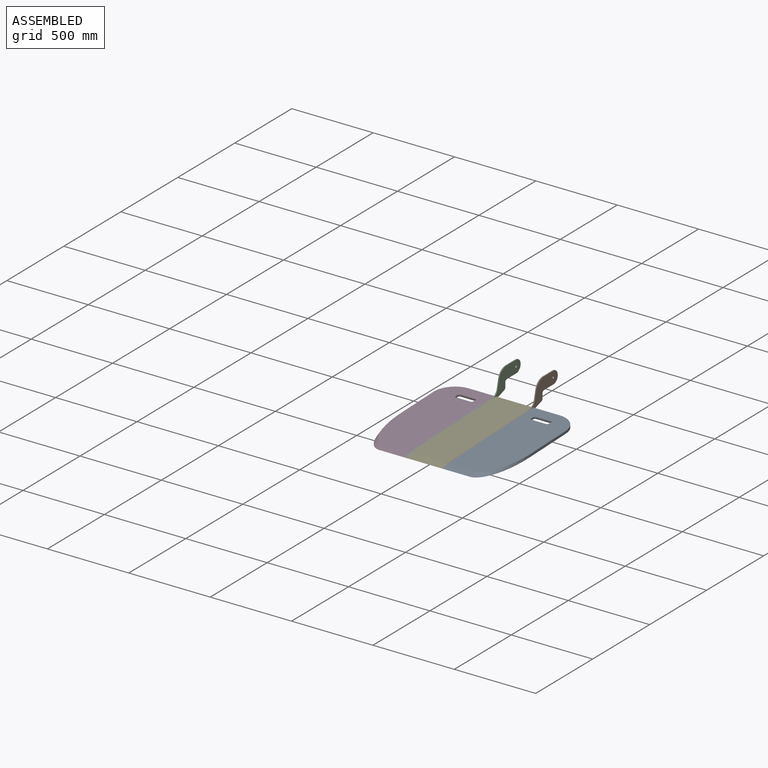
[diagram: assembled view]
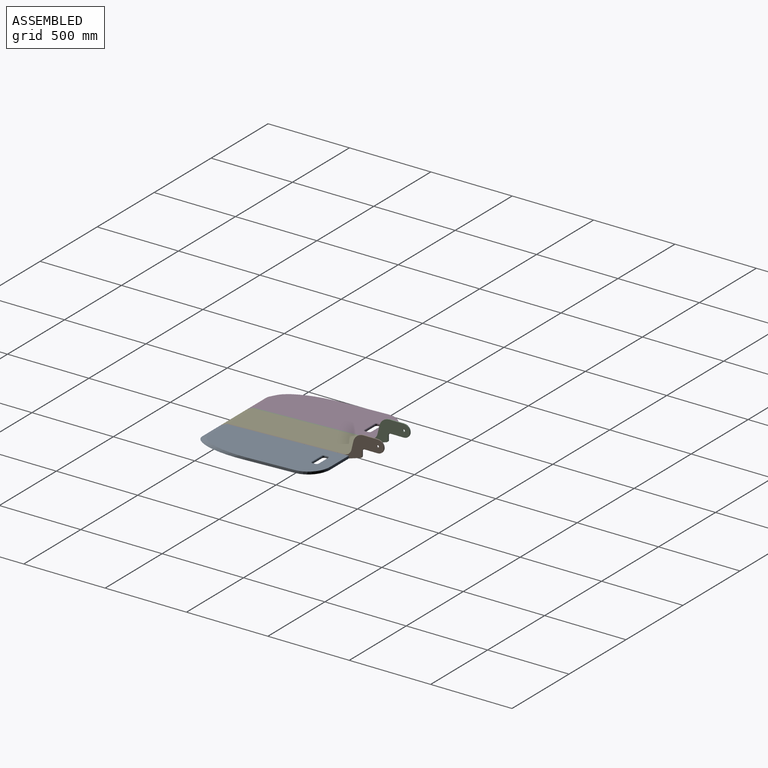
[diagram: assembled view, second angle]
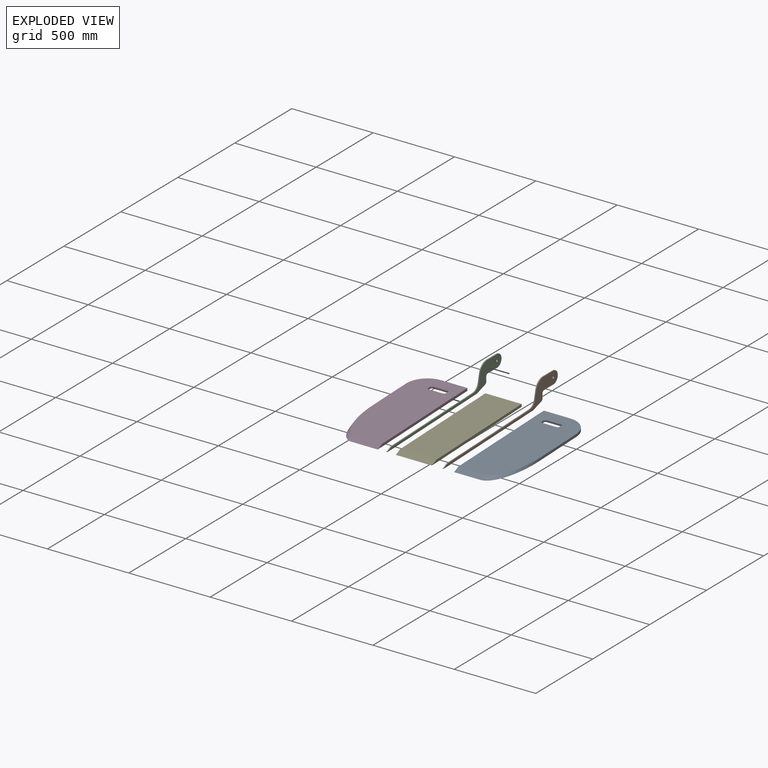
[diagram: exploded view]
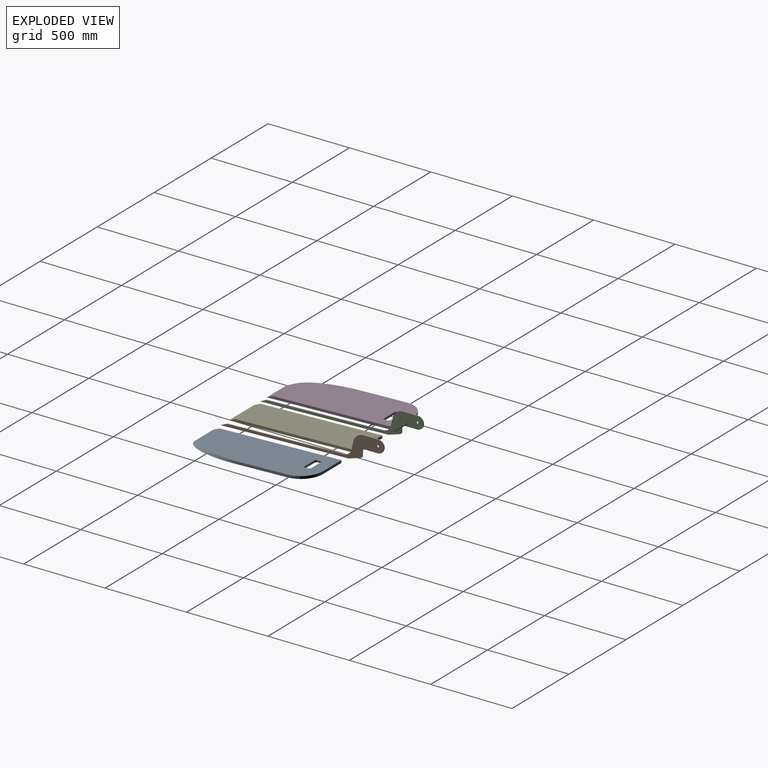
[diagram: exploded view, second angle]
ASSEMBLY  parts=5 mates=4
PART A: 32 faces, bbox 288.9x787x259.2 mm
  f0: plane 19.22x6.33mm, normal (-1,0,0), area 108.9mm2, adj f1,f7,f12,f17
  f1: cylinder r=9.53mm len=9.7mm, axis (0,0.03,-1), area 85.5mm2, adj f0,f2,f11,f18
  f2: plane 88.9x5.71mm, normal (0,-1,-0.03), area 508.1mm2, adj f1,f3,f10,f19
  f3: cylinder r=9.53mm len=9.7mm, axis (0,-0.03,1), area 85.5mm2, adj f2,f4,f9,f20
  f4: plane 19.22x6.33mm, normal (1,0,0), area 108.9mm2, adj f3,f5,f8,f21
  f5: cylinder r=9.53mm len=9.7mm, axis (0,0.03,-1), area 85.5mm2, adj f4,f6,f15,f22
  f6: plane 88.9x5.71mm, normal (0,1,0.03), area 508.1mm2, adj f5,f7,f14,f23
  f7: cylinder r=9.53mm len=9.7mm, axis (0,-0.03,1), area 85.5mm2, adj f0,f6,f13,f24
  f8: cylinder r=5.08mm len=19.2mm, axis (0,-1,-0.03), area 152mm2, adj f4,f9,f15,f30
  f9: torus R=14.61mm, axis (0,-0.03,1), area 142.5mm2, adj f3,f8,f10,f30
  f10: cylinder r=5.08mm len=88.9mm, axis (-1,0,0), area 709.4mm2, adj f2,f9,f11,f30
  f11: torus R=14.61mm, axis (0,-0.03,1), area 142.5mm2, adj f1,f10,f12,f30
  f12: cylinder r=5.08mm len=19.2mm, axis (0,1,0.03), area 152mm2, adj f0,f11,f13,f30
  f13: torus R=14.61mm, axis (0,-0.03,1), area 142.5mm2, adj f7,f12,f14,f30
  f14: cylinder r=5.08mm len=88.9mm, axis (1,0,0), area 709.4mm2, adj f6,f13,f15,f30
  f15: torus R=14.61mm, axis (0,-0.03,1), area 142.5mm2, adj f5,f8,f14,f30
  f16: plane 328.3x26.48mm, normal (1,0,0), area 4914.3mm2, adj f25,f26,f29,f30
  f17: cylinder r=5.08mm len=19.2mm, axis (0,1,0.03), area 152mm2, adj f0,f18,f24,f29
  f18: torus R=14.61mm, axis (0,0.03,-1), area 142.5mm2, adj f1,f17,f19,f29
  f19: cylinder r=5.08mm len=88.9mm, axis (-1,0,0), area 709.4mm2, adj f2,f18,f20,f29
  f20: torus R=14.61mm, axis (0,0.03,-1), area 142.5mm2, adj f3,f19,f21,f29
  f21: cylinder r=5.08mm len=19.2mm, axis (0,-1,-0.03), area 152mm2, adj f4,f20,f22,f29
  f22: torus R=14.61mm, axis (0,0.03,-1), area 142.5mm2, adj f5,f21,f23,f29
  f23: cylinder r=5.08mm len=88.9mm, axis (1,0,0), area 709.4mm2, adj f6,f22,f24,f29
  f24: torus R=14.61mm, axis (0,0.03,-1), area 142.5mm2, adj f7,f17,f23,f29
  f25: cylinder r=127mm len=369.49mm, axis (0,0.91,0.41), area 8275.6mm2, adj f16,f27,f29,f30
  f26: cylinder r=127mm len=127mm, axis (0,0,-1), area 3168.6mm2, adj f16,f28,f29,f30
  f27: plane 161.93x37.79mm, normal (0,-0.41,0.91), area 6717.2mm2, adj f25,f29,f30,f31
  f28: plane 161.93x15.88mm, normal (0,1,0), area 2571.9mm2, adj f26,f29,f30,f31
  f29: plane 749.2x288.93mm, normal (0,-0.03,1), area 198549.5mm2, adj f16,f17,f18,f19,f20,f21,f22,f23
  f30: plane 786.99x288.93mm, normal (0,0.03,-1), area 209474.7mm2, adj f8,f9,f10,f11,f12,f13,f14,f15
  f31: plane 786.99x41.28mm, normal (-1,0,0), area 12199.8mm2, adj f27,f28,f29,f30
PART B: 27 faces, bbox 6.4x1002.9x177.8 mm
  f0: cylinder r=2.38mm len=6.35mm, axis (-1,0,0), area 31.7mm2, adj f1,f20,f21,f22
  f1: plane 6.35x2.23mm, normal (0,0.87,-0.5), area 16.3mm2, adj f0,f2,f21,f22
  f2: cylinder r=2.38mm len=6.35mm, axis (-1,0,0), area 31.7mm2, adj f1,f3,f21,f22
  f3: plane 6.35x2.57mm, normal (0,0,-1), area 16.3mm2, adj f2,f4,f21,f22
  f4: cylinder r=2.38mm len=6.35mm, axis (-1,0,0), area 31.7mm2, adj f3,f5,f21,f22
  f5: plane 6.35x2.23mm, normal (0,-0.87,-0.5), area 16.3mm2, adj f4,f6,f21,f22
  f6: cylinder r=2.38mm len=6.35mm, axis (-1,0,0), area 31.7mm2, adj f5,f7,f21,f22
  f7: plane 6.35x2.23mm, normal (0,-0.87,0.5), area 16.3mm2, adj f6,f8,f21,f22
  f8: cylinder r=2.38mm len=6.35mm, axis (-1,0,0), area 31.7mm2, adj f7,f9,f21,f22
  f9: plane 6.35x2.57mm, normal (0,0,1), area 16.3mm2, adj f8,f10,f21,f22
  f10: cylinder r=2.38mm len=6.35mm, axis (-1,0,0), area 31.7mm2, adj f9,f20,f21,f22
  f11: plane 37.79x17.1mm, normal (0,-0.41,0.91), area 263.4mm2, adj f12,f19,f21,f22
  f12: plane 786.99x25.4mm, normal (0,0.03,-1), area 5000mm2, adj f11,f13,f21,f22
  f13: plane 72.85x22.63mm, normal (0,0.3,-0.96), area 484.4mm2, adj f12,f21,f22,f23
  f14: plane 28.75x6.35mm, normal (0,1,0), area 182.5mm2, adj f21,f22,f23,f26
  f15: plane 83.31x6.35mm, normal (0,0,-1), area 529mm2, adj f16,f21,f22,f26
  f16: cylinder r=38.1mm len=76.2mm, axis (-1,0,0), area 760.1mm2, adj f15,f17,f21,f22
  f17: plane 87.79x6.35mm, normal (0,0,1), area 557.5mm2, adj f16,f21,f22,f25
  f18: plane 49.26x11.51mm, normal (0,-0.97,0.23), area 321.2mm2, adj f21,f22,f24,f25
  f19: plane 718.03x23.17mm, normal (0,-0.03,1), area 4561.9mm2, adj f11,f21,f22,f24
  f20: plane 6.35x2.23mm, normal (0,0.87,0.5), area 16.3mm2, adj f0,f10,f21,f22
  f21: plane 1002.89x177.8mm, normal (1,0,0), area 29658.5mm2, adj f0,f1,f2,f3,f4,f5,f6,f7
  f22: plane 1002.89x177.8mm, normal (-1,0,0), area 29658.5mm2, adj f0,f1,f2,f3,f4,f5,f6,f7
  f23: cylinder r=12.7mm len=12.13mm, axis (1,0,0), area 102.4mm2, adj f13,f14,f21,f22
  f24: cylinder r=50.8mm len=47.83mm, axis (1,0,0), area 422.3mm2, adj f18,f19,f21,f22
  f25: cylinder r=63.5mm len=61.83mm, axis (1,0,0), area 540.8mm2, adj f17,f18,f21,f22
  f26: cylinder r=12.7mm len=12.7mm, axis (1,0,0), area 126.7mm2, adj f14,f15,f21,f22
PART C: same geometry as B
PART D: 32 faces, bbox 288.9x787x259.2 mm
  f0: plane 786.99x288.93mm, normal (0,0.03,-1), area 209474.7mm2, adj f2,f3,f4,f21,f22,f23,f24,f25
  f1: plane 749.2x288.93mm, normal (0,-0.03,1), area 198549.5mm2, adj f2,f3,f4,f13,f14,f15,f16,f17
  f2: plane 161.93x37.79mm, normal (0,-0.41,0.91), area 6717.2mm2, adj f0,f1,f30,f31
  f3: plane 161.93x15.88mm, normal (0,1,0), area 2571.9mm2, adj f0,f1,f29,f31
  f4: plane 328.3x26.48mm, normal (-1,0,0), area 4914.3mm2, adj f0,f1,f29,f30
  f5: plane 88.9x5.71mm, normal (0,-1,-0.03), area 508.1mm2, adj f9,f12,f20,f28
  f6: plane 19.22x6.33mm, normal (1,0,0), area 108.9mm2, adj f9,f10,f17,f25
  f7: plane 88.9x5.71mm, normal (0,1,0.03), area 508.1mm2, adj f10,f11,f13,f21
  f8: plane 19.22x6.33mm, normal (-1,0,0), area 108.9mm2, adj f11,f12,f16,f24
  f9: cylinder r=9.53mm len=9.7mm, axis (0,0.03,-1), area 85.5mm2, adj f5,f6,f19,f27
  f10: cylinder r=9.53mm len=9.7mm, axis (0,-0.03,1), area 85.5mm2, adj f6,f7,f15,f23
  f11: cylinder r=9.53mm len=9.7mm, axis (0,0.03,-1), area 85.5mm2, adj f7,f8,f14,f22
  f12: cylinder r=9.53mm len=9.7mm, axis (0,-0.03,1), area 85.5mm2, adj f5,f8,f18,f26
  f13: cylinder r=5.08mm len=88.9mm, axis (1,0,0), area 709.4mm2, adj f1,f7,f14,f15
  f14: torus R=14.61mm, axis (0,0.03,-1), area 142.5mm2, adj f1,f11,f13,f16
  f15: torus R=14.61mm, axis (0,0.03,-1), area 142.5mm2, adj f1,f10,f13,f17
  f16: cylinder r=5.08mm len=19.2mm, axis (0,1,0.03), area 152mm2, adj f1,f8,f14,f18
  f17: cylinder r=5.08mm len=19.2mm, axis (0,-1,-0.03), area 152mm2, adj f1,f6,f15,f19
  f18: torus R=14.61mm, axis (0,0.03,-1), area 142.5mm2, adj f1,f12,f16,f20
  f19: torus R=14.61mm, axis (0,0.03,-1), area 142.5mm2, adj f1,f9,f17,f20
  f20: cylinder r=5.08mm len=88.9mm, axis (-1,0,0), area 709.4mm2, adj f1,f5,f18,f19
  f21: cylinder r=5.08mm len=88.9mm, axis (1,0,0), area 709.4mm2, adj f0,f7,f22,f23
  f22: torus R=14.61mm, axis (0,-0.03,1), area 142.5mm2, adj f0,f11,f21,f24
  f23: torus R=14.61mm, axis (0,-0.03,1), area 142.5mm2, adj f0,f10,f21,f25
  f24: cylinder r=5.08mm len=19.2mm, axis (0,1,0.03), area 152mm2, adj f0,f8,f22,f26
  f25: cylinder r=5.08mm len=19.2mm, axis (0,-1,-0.03), area 152mm2, adj f0,f6,f23,f27
  f26: torus R=14.61mm, axis (0,-0.03,1), area 142.5mm2, adj f0,f12,f24,f28
  f27: torus R=14.61mm, axis (0,-0.03,1), area 142.5mm2, adj f0,f9,f25,f28
  f28: cylinder r=5.08mm len=88.9mm, axis (-1,0,0), area 709.4mm2, adj f0,f5,f26,f27
  f29: cylinder r=127mm len=127mm, axis (0,0,1), area 3168.6mm2, adj f0,f1,f3,f4
  f30: cylinder r=127mm len=369.49mm, axis (0,-0.91,-0.41), area 8275.6mm2, adj f0,f1,f2,f4
  f31: plane 786.99x41.28mm, normal (1,0,0), area 12199.8mm2, adj f0,f1,f2,f3
PART E: 6 faces, bbox 222.3x787x41.3 mm
  f0: plane 222.25x15.88mm, normal (0,1,0), area 3530.1mm2, adj f2,f3,f4,f5
  f1: plane 222.25x37.79mm, normal (0,-0.41,0.91), area 9219.7mm2, adj f2,f3,f4,f5
  f2: plane 749.2x222.25mm, normal (0,-0.03,1), area 166595.6mm2, adj f0,f1,f4,f5
  f3: plane 786.99x222.25mm, normal (0,0.03,-1), area 174999.7mm2, adj f0,f1,f4,f5
  f4: plane 786.99x41.28mm, normal (1,0,0), area 12199.8mm2, adj f0,f1,f2,f3
  f5: plane 786.99x41.28mm, normal (-1,0,0), area 12199.8mm2, adj f0,f1,f2,f3
PLACE A t=(-5.69,607.08,-252.12)mm
PLACE B t=(105.43,607.08,-252.12)mm
PLACE C t=(-123.17,607.08,-252.12)mm
PLACE D t=(-5.69,607.08,-252.12)mm
PLACE E t=(-5.69,607.08,-252.12)mm fixed
MATE fastened E.f4 <-> B.f22  axis (1,0,0) through (105.43,-611.71,-252.12)mm
MATE fastened B.f21 <-> A.f31  axis (1,0,0) through (111.78,-611.71,-252.12)mm
MATE fastened C.f22 <-> D.f31  axis (-1,0,0) through (-123.17,-611.71,-252.12)mm
MATE fastened E.f5 <-> C.f21  axis (-1,0,0) through (-116.82,-611.71,-252.12)mm
